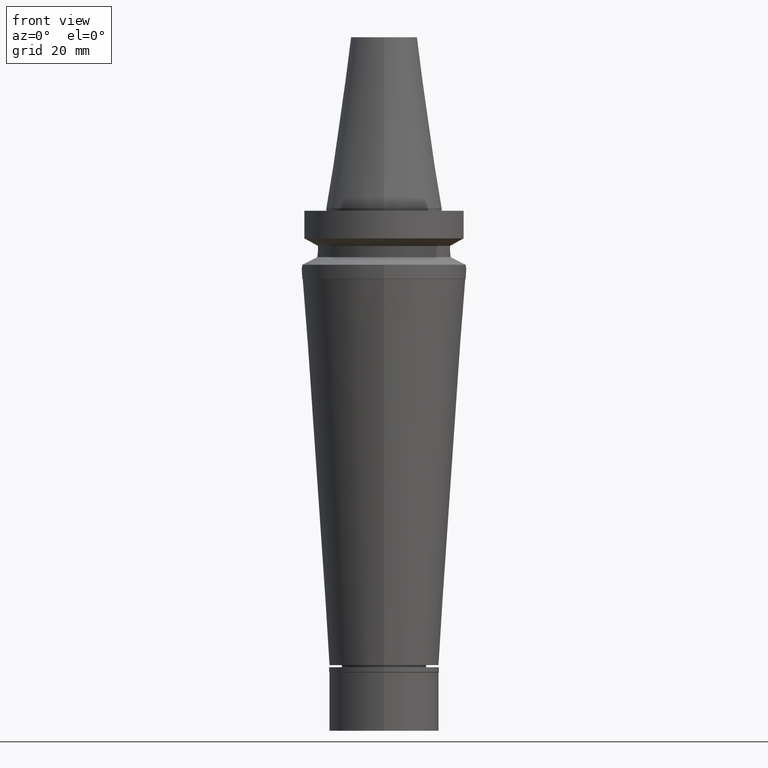
[diagram: clean part render]
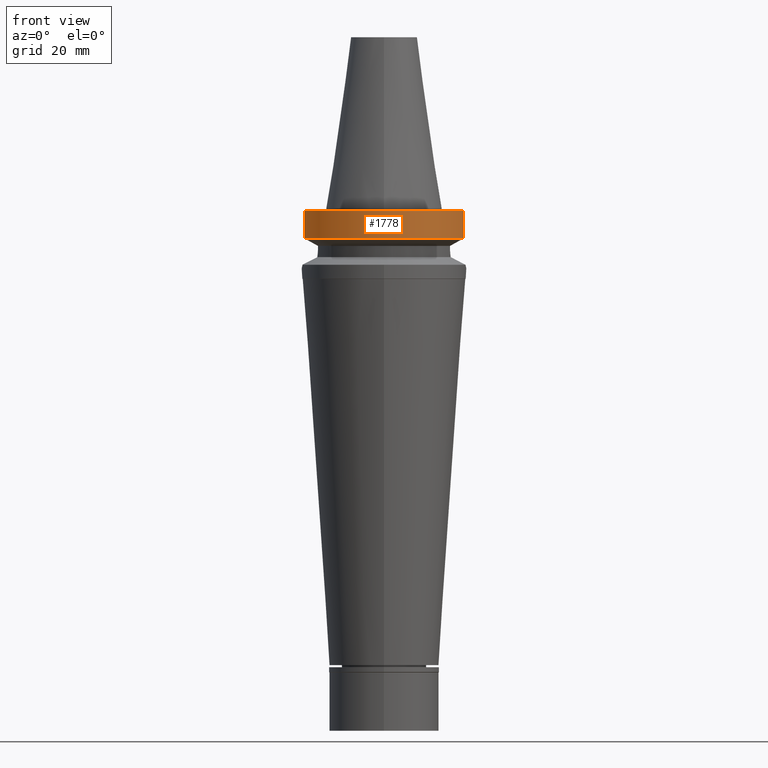
[diagram: same view with one face highlighted and labeled with its STEP entity id]
A machine part, front view. The second image highlights one B-rep face of the part: STEP entity #1778.
In plain terms, the highlighted cylindrical surface (partial cylindrical patch) has radius 31.5 mm, axis along (0, 0, -1).
Its self-contained STEP definition (entity closure, byte-faithful):
#48 = VERTEX_POINT ( 'NONE', #1828 ) ;
#109 = AXIS2_PLACEMENT_3D ( 'NONE', #3098, #1408, #2162 ) ;
#130 = EDGE_LOOP ( 'NONE', ( #2698, #1743, #1315, #531 ) ) ;
#186 = DIRECTION ( 'NONE',  ( 0.0000000000000000000, 0.0000000000000000000, -1.000000000000000000 ) ) ;
#227 = DIRECTION ( 'NONE',  ( 0.0000000000000000000, -1.000000000000000000, 0.0000000000000000000 ) ) ;
#317 = DIRECTION ( 'NONE',  ( -1.036649194657017645E-07, -3.921750933745068257E-07, -0.9999999999999177325 ) ) ;
#332 = EDGE_CURVE ( 'NONE', #48, #2080, #2497, .T. ) ;
#473 = DIRECTION ( 'NONE',  ( 0.0000000000000000000, 0.0000000000000000000, -1.000000000000000000 ) ) ;
#531 = ORIENTED_EDGE ( 'NONE', *, *, #2320, .T. ) ;
#656 = CARTESIAN_POINT ( 'NONE',  ( -30.45402291358000113, -8.049999278195999253, -11.56551215380000031 ) ) ;
#734 = FACE_OUTER_BOUND ( 'NONE', #130, .T. ) ;
#823 = VERTEX_POINT ( 'NONE', #1916 ) ;
#842 = LINE ( 'NONE', #656, #2311 ) ;
#854 = VERTEX_POINT ( 'NONE', #3125 ) ;
#860 = CARTESIAN_POINT ( 'NONE',  ( 30.45402272279000044, -8.049999999999000622, -11.56550565266999975 ) ) ;
#942 = AXIS2_PLACEMENT_3D ( 'NONE', #2885, #186, #227 ) ;
#972 = DIRECTION ( 'NONE',  ( 0.0000000000000000000, -1.000000000000000000, 0.0000000000000000000 ) ) ;
#1315 = ORIENTED_EDGE ( 'NONE', *, *, #1530, .F. ) ;
#1408 = DIRECTION ( 'NONE',  ( 0.0000000000000000000, 0.0000000000000000000, 1.000000000000000000 ) ) ;
#1445 = CIRCLE ( 'NONE', #942, 31.50000000000000000 ) ;
#1520 = CARTESIAN_POINT ( 'NONE',  ( 30.45402272279000044, -8.050000000000000711, -1.000000000000000000 ) ) ;
#1530 = EDGE_CURVE ( 'NONE', #854, #2080, #2966, .T. ) ;
#1685 = CARTESIAN_POINT ( 'NONE',  ( 0.0000000000000000000, 2.183484010539999864E-14, 78.29500000000000171 ) ) ;
#1734 = VECTOR ( 'NONE', #317, 1000.000000000000114 ) ;
#1743 = ORIENTED_EDGE ( 'NONE', *, *, #332, .T. ) ;
#1778 = ADVANCED_FACE ( 'NONE', ( #734 ), #2383, .T. ) ;
#1828 = CARTESIAN_POINT ( 'NONE',  ( -30.45402291358000113, -8.049999278195999253, -11.56551215380000031 ) ) ;
#1916 = CARTESIAN_POINT ( 'NONE',  ( -30.45402272279000044, -8.050000000000000711, -1.000000000000000000 ) ) ;
#2080 = VERTEX_POINT ( 'NONE', #860 ) ;
#2084 = DIRECTION ( 'NONE',  ( 1.805835241063990690E-08, -6.831694115686962827E-08, 0.9999999999999974465 ) ) ;
#2089 = EDGE_CURVE ( 'NONE', #48, #823, #842, .T. ) ;
#2162 = DIRECTION ( 'NONE',  ( 0.0000000000000000000, -1.000000000000000000, 0.0000000000000000000 ) ) ;
#2311 = VECTOR ( 'NONE', #2084, 1000.000000000000114 ) ;
#2320 = EDGE_CURVE ( 'NONE', #854, #823, #1445, .T. ) ;
#2363 = AXIS2_PLACEMENT_3D ( 'NONE', #1685, #473, #972 ) ;
#2383 = CYLINDRICAL_SURFACE ( 'NONE', #2363, 31.50000000000000000 ) ;
#2497 = CIRCLE ( 'NONE', #109, 31.50000000000000000 ) ;
#2698 = ORIENTED_EDGE ( 'NONE', *, *, #2089, .F. ) ;
#2885 = CARTESIAN_POINT ( 'NONE',  ( 0.0000000000000000000, 2.183484010539999864E-14, -1.000000000000000000 ) ) ;
#2966 = LINE ( 'NONE', #1520, #1734 ) ;
#3098 = CARTESIAN_POINT ( 'NONE',  ( 0.0000000000000000000, 1.065333950388000029E-14, -11.56550565266999975 ) ) ;
#3125 = CARTESIAN_POINT ( 'NONE',  ( 30.45402272279000044, -8.050000000000000711, -1.000000000000000000 ) ) ;